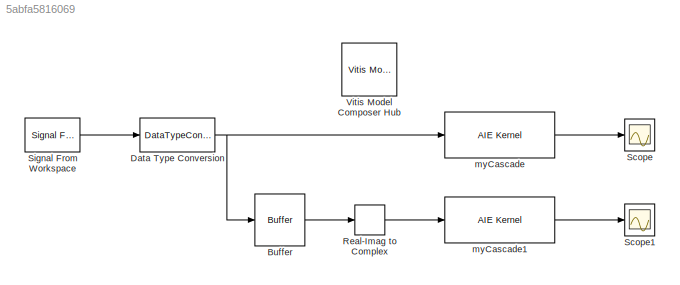
MODEL slx_5abfa5816069
KIND model
CONFIG AbsTol = auto
CONFIG EnableMultiTasking = off
CONFIG FixedStep = auto
CONFIG MaxStep = auto
CONFIG MinStep = auto
CONFIG RelTol = 1e-3
CONFIG SampleTimeConstraint = Unconstrained
CONFIG SolverName = VariableStepAuto
CONFIG StartTime = 0.0
CONFIG StopTime = 10.0
BLOCK [Buffer] Buffer
  N = 4
  OutputFrames = off
BLOCK [DataTypeConversion] Data Type Conversion
  OutDataTypeStr = int16
  RndMeth = Floor
  SaturateOnIntegerOverflow = off
BLOCK [RealImagToComplex] Real-Imag to Complex
  Input = Real
BLOCK [Scope] Scope
  Floating = off
  NumInputPorts = 1
  ScopeSpecificationString = Simulink.scopes.TimeScopeBlockCfg('CurrentConfiguration', extmgr.ConfigurationSet(extmgr.Configuration('Core','General UI',true,'DisplayFullSourceName',false,'ShowMainToolbar',true),extmgr.Configuration('Sources','WiredSimulink',true,'DataLogging',false,'DataLoggingVariableName','ScopeData','DataLoggingLimitDataPoints',false,'DataLoggingMaxPoints','5000','DataLoggingDecimateData',false,'DataLoggin...<+1995ch>
BLOCK [Scope] Scope1
  Floating = off
  NumInputPorts = 1
  ScopeSpecificationString = Simulink.scopes.TimeScopeBlockCfg('CurrentConfiguration', extmgr.ConfigurationSet(extmgr.Configuration('Core','General UI',true,'DisplayFullSourceName',false,'ShowMainToolbar',true),extmgr.Configuration('Sources','WiredSimulink',true,'DataLogging',false,'DataLoggingVariableName','ScopeData1','DataLoggingLimitDataPoints',false,'DataLoggingMaxPoints','5000','DataLoggingDecimateData',false,'DataLoggi...<+1987ch>
BLOCK [Reference] Signal From Workspace  REF=dspsrcs4/Signal From
Workspace
  SourceBlock = dspsrcs4/Signal From\nWorkspace
  SourceType = Signal From Workspace
BLOCK [Reference] Vitis Model Composer Hub  REF=vmcUtilities/Vitis Model Composer Hub
  SourceBlock = vmcUtilities/Vitis Model Composer Hub
  SourceType = VMC Hub
  Tag = genX
  UserDataPersistent = on
BLOCK [Reference] myCascade  REF=aieBasic/AIE Kernel
  SourceBlock = aieBasic/AIE Kernel
  SourceType = AIE Kernel Function
BLOCK [Reference] myCascade1  REF=aieBasic/AIE Kernel
  SourceBlock = aieBasic/AIE Kernel
  SourceType = AIE Kernel Function
LINE Buffer:1 -> Real-Imag to Complex:1
NET Data Type Conversion:1 -> Buffer:1, myCascade:1
LINE Real-Imag to Complex:1 -> myCascade1:1
LINE Signal From Workspace:1 -> Data Type Conversion:1
LINE myCascade1:1 -> Scope1:1
LINE myCascade:1 -> Scope:1
note: NET lines group one-source signal fan-out (src -> all destinations, sorted); 1:1 wires keep LINE
